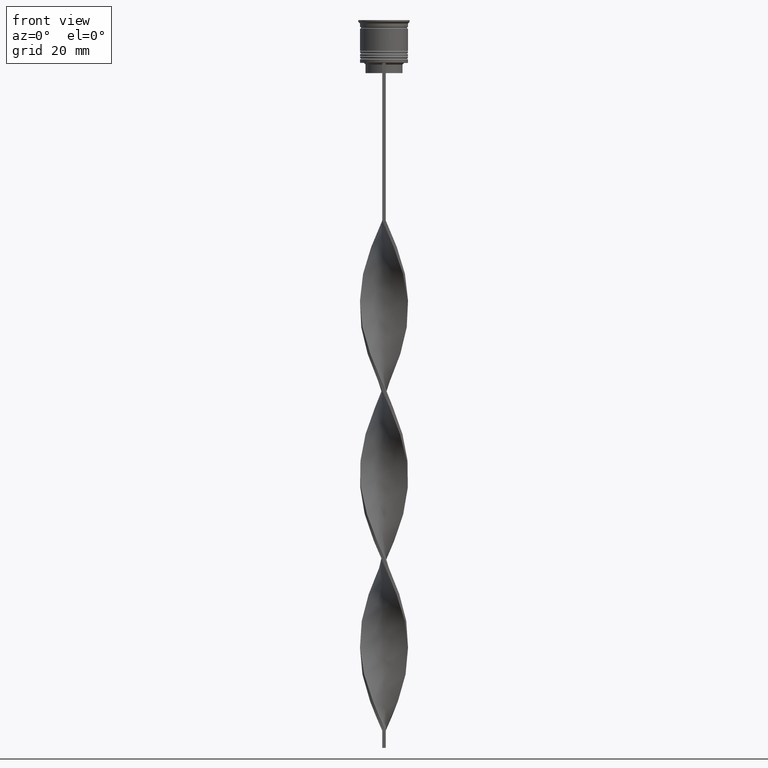
[diagram: clean part render]
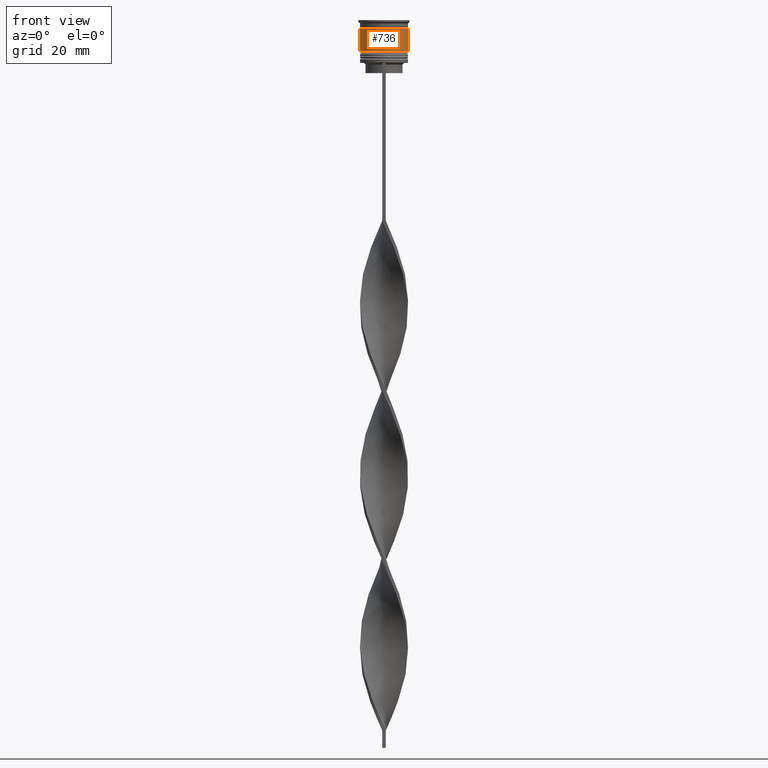
[diagram: same view with one face highlighted and labeled with its STEP entity id]
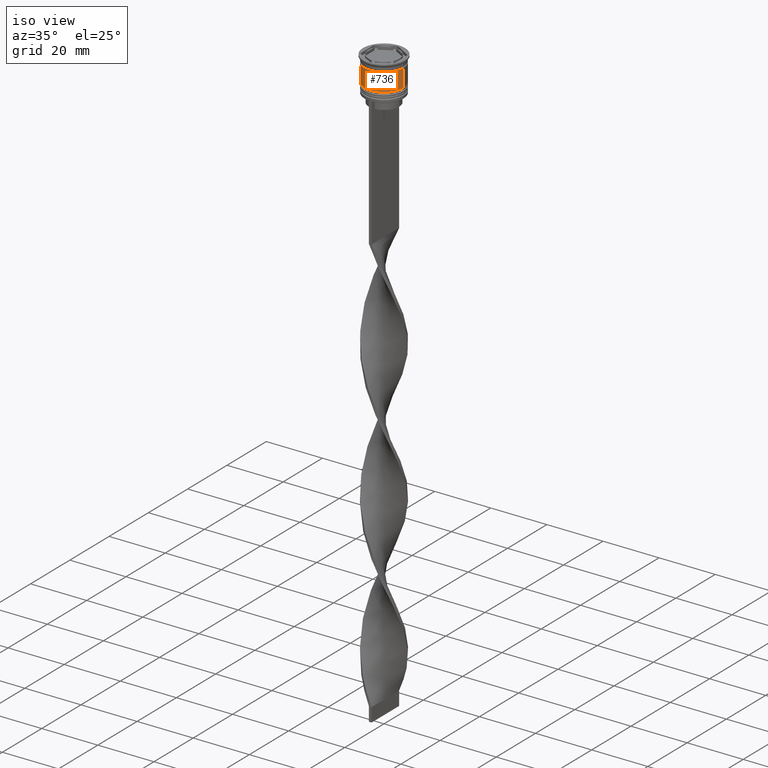
[diagram: same view with one face highlighted and labeled with its STEP entity id]
A machine part, front view. The second image highlights one B-rep face of the part: STEP entity #736.
A second angle (iso view) of the same face is appended — the face is thin or edge-on in the first view.
In plain terms, the highlighted cylindrical surface (edge-blend (fillet) strip) has radius 7 mm, axis along (-0, -0, 1).
Its self-contained STEP definition (entity closure, byte-faithful):
#40 = VECTOR ( 'NONE', #3691, 1000.000000000000000 ) ;
#373 = DIRECTION ( 'NONE',  ( -0.000000000000000000, -0.000000000000000000, 1.000000000000000000 ) ) ;
#408 = CIRCLE ( 'NONE', #2165, 6.999999999999997335 ) ;
#415 = ORIENTED_EDGE ( 'NONE', *, *, #3305, .T. ) ;
#488 = DIRECTION ( 'NONE',  ( 1.000000000000000000, 0.000000000000000000, 0.000000000000000000 ) ) ;
#523 = CARTESIAN_POINT ( 'NONE',  ( 0.000000000000000000, 0.000000000000000000, -9.000000000000001776 ) ) ;
#642 = DIRECTION ( 'NONE',  ( 1.000000000000000000, 0.000000000000000000, 0.000000000000000000 ) ) ;
#688 = LINE ( 'NONE', #2489, #40 ) ;
#717 = CYLINDRICAL_SURFACE ( 'NONE', #2092, 6.999999999999999112 ) ;
#736 = ADVANCED_FACE ( 'NONE', ( #3131 ), #717, .T. ) ;
#922 = EDGE_CURVE ( 'NONE', #2914, #2359, #408, .T. ) ;
#995 = DIRECTION ( 'NONE',  ( -0.000000000000000000, -0.000000000000000000, 1.000000000000000000 ) ) ;
#1102 = EDGE_LOOP ( 'NONE', ( #1118, #1138, #415, #2286 ) ) ;
#1118 = ORIENTED_EDGE ( 'NONE', *, *, #3739, .F. ) ;
#1138 = ORIENTED_EDGE ( 'NONE', *, *, #3573, .T. ) ;
#1405 = CARTESIAN_POINT ( 'NONE',  ( 6.999999999999997335, 0.000000000000000000, -2.500000000000000444 ) ) ;
#1624 = CARTESIAN_POINT ( 'NONE',  ( 6.999999999999999112, 0.000000000000000000, 0.000000000000000000 ) ) ;
#1732 = VECTOR ( 'NONE', #373, 1000.000000000000000 ) ;
#1862 = AXIS2_PLACEMENT_3D ( 'NONE', #523, #2327, #3769 ) ;
#1883 = VERTEX_POINT ( 'NONE', #2988 ) ;
#2092 = AXIS2_PLACEMENT_3D ( 'NONE', #2792, #995, #642 ) ;
#2165 = AXIS2_PLACEMENT_3D ( 'NONE', #2283, #3181, #488 ) ;
#2283 = CARTESIAN_POINT ( 'NONE',  ( 0.000000000000000000, 0.000000000000000000, -2.500000000000000444 ) ) ;
#2286 = ORIENTED_EDGE ( 'NONE', *, *, #922, .F. ) ;
#2327 = DIRECTION ( 'NONE',  ( -0.000000000000000000, -0.000000000000000000, 1.000000000000000000 ) ) ;
#2359 = VERTEX_POINT ( 'NONE', #1405 ) ;
#2415 = CARTESIAN_POINT ( 'NONE',  ( -7.000000000000000888, 8.572527594031474176E-16, -9.000000000000001776 ) ) ;
#2463 = CARTESIAN_POINT ( 'NONE',  ( -6.999999999999997335, 8.572527594031471218E-16, -2.500000000000000444 ) ) ;
#2489 = CARTESIAN_POINT ( 'NONE',  ( -6.999999999999999112, 8.572527594031472204E-16, 0.000000000000000000 ) ) ;
#2792 = CARTESIAN_POINT ( 'NONE',  ( 0.000000000000000000, 0.000000000000000000, 0.000000000000000000 ) ) ;
#2830 = LINE ( 'NONE', #1624, #1732 ) ;
#2914 = VERTEX_POINT ( 'NONE', #2463 ) ;
#2988 = CARTESIAN_POINT ( 'NONE',  ( 7.000000000000000888, 0.000000000000000000, -9.000000000000001776 ) ) ;
#3131 = FACE_OUTER_BOUND ( 'NONE', #1102, .T. ) ;
#3180 = VERTEX_POINT ( 'NONE', #2415 ) ;
#3181 = DIRECTION ( 'NONE',  ( -0.000000000000000000, -0.000000000000000000, 1.000000000000000000 ) ) ;
#3250 = CIRCLE ( 'NONE', #1862, 7.000000000000000888 ) ;
#3305 = EDGE_CURVE ( 'NONE', #1883, #2359, #2830, .T. ) ;
#3573 = EDGE_CURVE ( 'NONE', #3180, #1883, #3250, .T. ) ;
#3691 = DIRECTION ( 'NONE',  ( -0.000000000000000000, -0.000000000000000000, 1.000000000000000000 ) ) ;
#3739 = EDGE_CURVE ( 'NONE', #3180, #2914, #688, .T. ) ;
#3769 = DIRECTION ( 'NONE',  ( 1.000000000000000000, 0.000000000000000000, 0.000000000000000000 ) ) ;